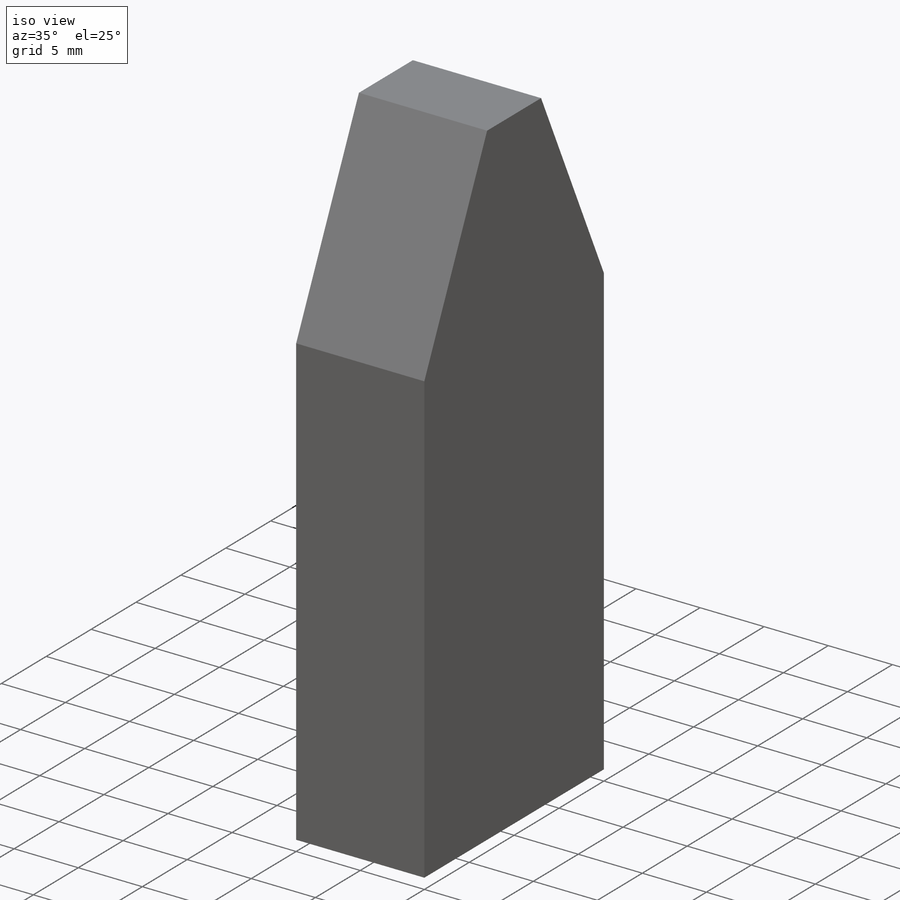
[diagram: iso view]
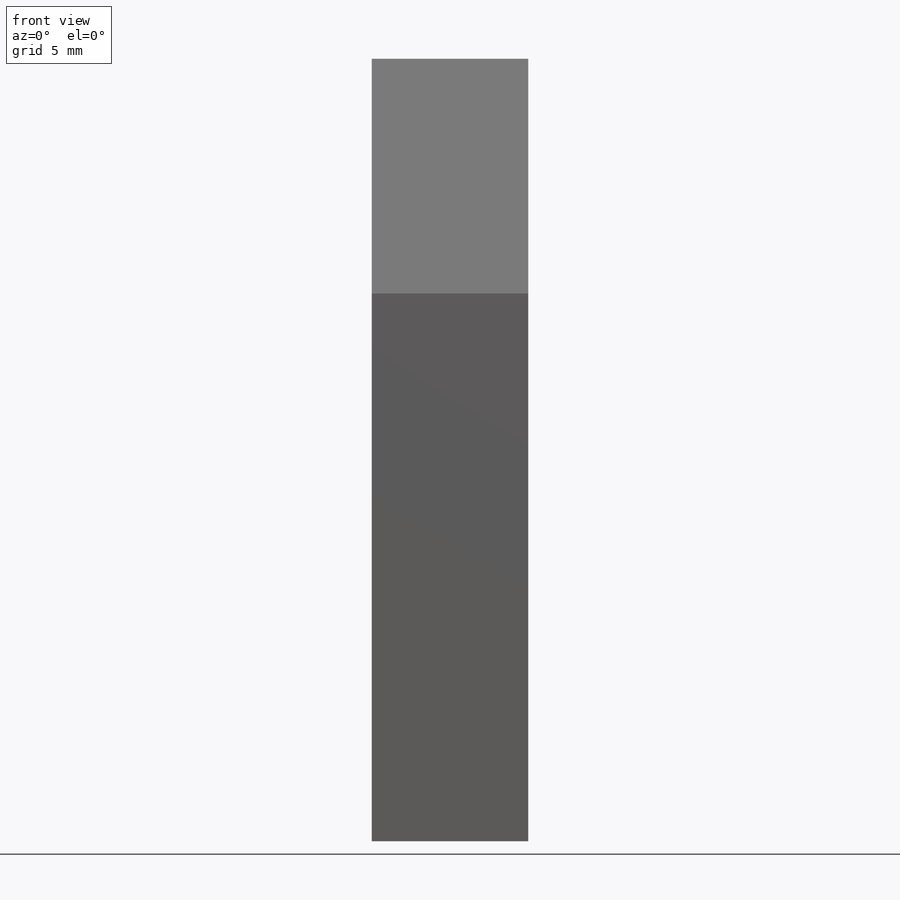
[diagram: front view]
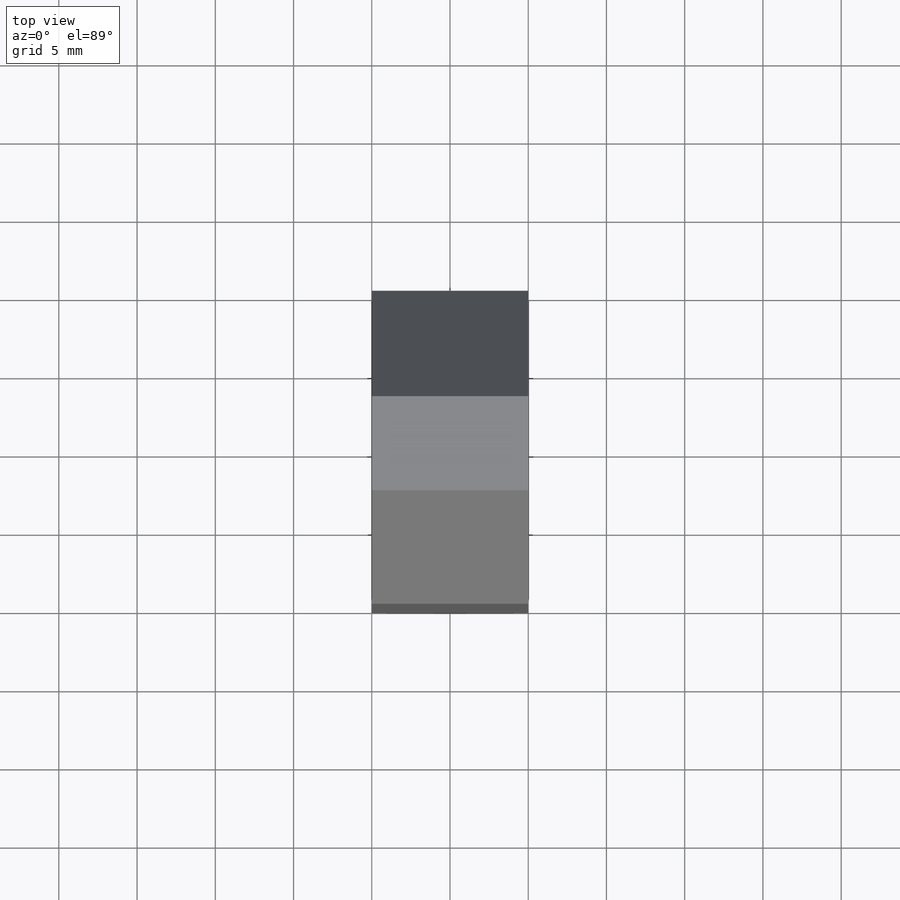
[diagram: top view]
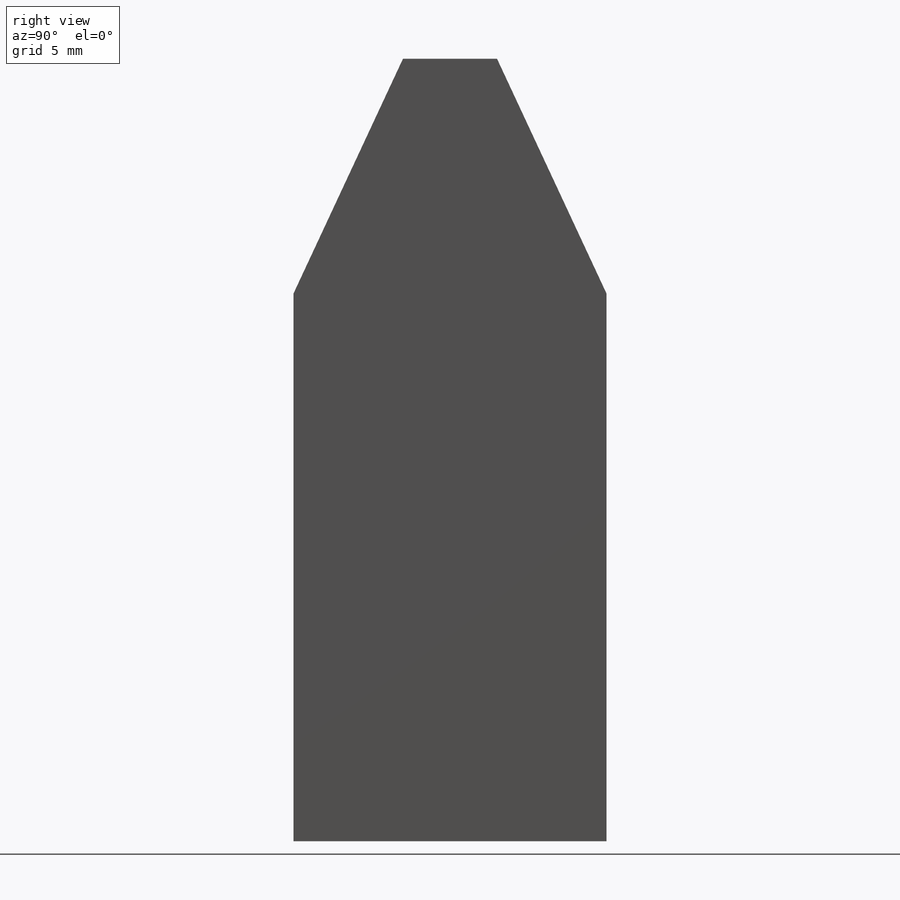
[diagram: right view]
SOLIDWORKS PART (.sldprt)
format: sldprt  version: not decoded by parser v0  size: 470,016 bytes
history: native  units: mm
features: plane x4, sketch x2, chamfer x2, material x1, extrude x1 (+14 scaffold rows collapsed)
feature tree (24):
  scaffold x14  (default folders/planes/origin — collapsed)
  material  "кварц кристаллический"
  plane  "Спереди"
  plane  "Сверху"
  plane  "Справа"
  plane  "Плоскость1"
  sketch  "Эскиз1"  dims[D1=20.0mm D2=10.0mm D3=~33.40092mm]
  extrude  "Вытянуть1"  Depth=50mm
  chamfer  "Фаска1"  Distance=15mm Angle=25deg
  chamfer  "Фаска2"  Distance=15mm Angle=25deg
  sketch  "Трехмерный эскиз1"  dims[D1=25.0mm]
decode coverage: 5 of 5 modeling features carry decoded parameters
note: ~ marks probable driven/reference dimensions
note: suppression state not decoded; provenance and decode notes live in map.json
